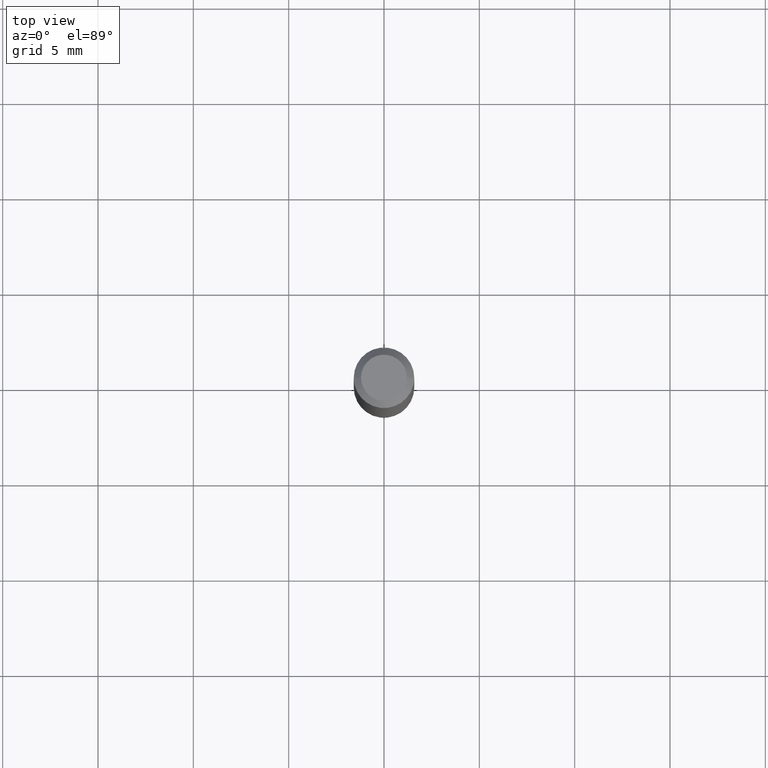
[diagram: clean part render]
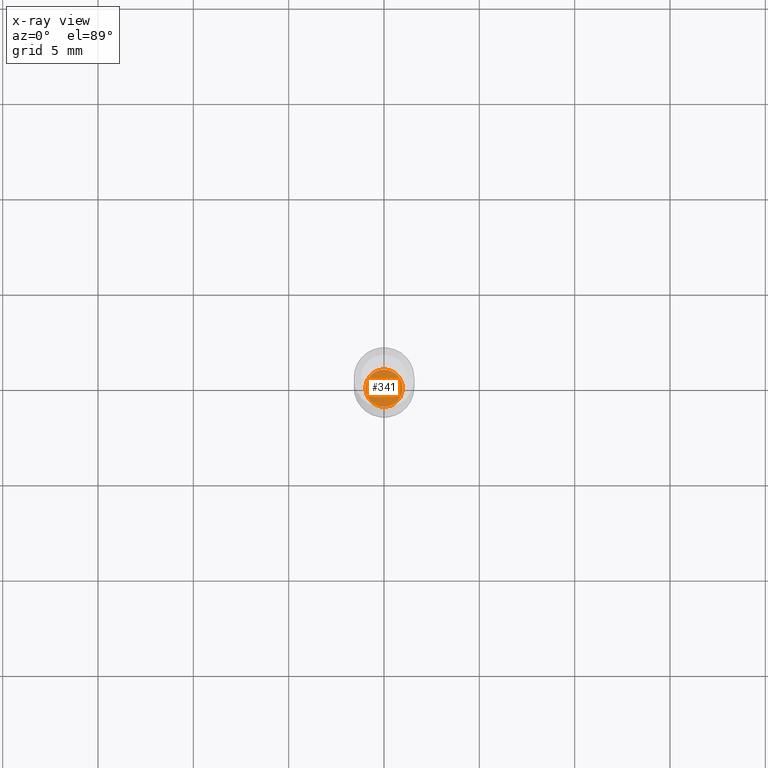
[diagram: x-ray — body ghosted, one internal face saturated and labeled with its STEP entity id]
A machine part, top view, then the same camera in x-ray: the body is ghosted and one INTERNAL B-rep face — a face not visible from any outside direction — is saturated and labeled: STEP entity #341.
In plain terms, the highlighted planar face has unit normal (-0, 0, 1).
Its self-contained STEP definition (entity closure, byte-faithful):
#4 = EDGE_CURVE ( 'NONE', #169, #399, #342, .T. ) ;
#7 = AXIS2_PLACEMENT_3D ( 'NONE', #355, #358, #20 ) ;
#20 = DIRECTION ( 'NONE',  ( 1.000000000000000000, -6.982962677686271444E-15, 0.000000000000000000 ) ) ;
#37 = AXIS2_PLACEMENT_3D ( 'NONE', #79, #272, #382 ) ;
#44 = PLANE ( 'NONE',  #37 ) ;
#53 = EDGE_LOOP ( 'NONE', ( #334, #111 ) ) ;
#79 = CARTESIAN_POINT ( 'NONE',  ( 3.095963508630383106E-29, -4.420215374975422163E-15, -1.266000000000000014 ) ) ;
#86 = AXIS2_PLACEMENT_3D ( 'NONE', #454, #415, #134 ) ;
#111 = ORIENTED_EDGE ( 'NONE', *, *, #408, .F. ) ;
#125 = CARTESIAN_POINT ( 'NONE',  ( -0.03849999999999999256, -4.144007194533673331E-15, -1.266000000000000014 ) ) ;
#134 = DIRECTION ( 'NONE',  ( 1.000000000000000000, -6.982962677686271444E-15, 0.000000000000000000 ) ) ;
#159 = CIRCLE ( 'NONE', #7, 0.03849999999999999256 ) ;
#169 = VERTEX_POINT ( 'NONE', #250 ) ;
#250 = CARTESIAN_POINT ( 'NONE',  ( 0.03849999999999999256, -4.689059438066343968E-15, -1.266000000000000014 ) ) ;
#272 = DIRECTION ( 'NONE',  ( -2.438088387897960049E-29, 3.491481338843145188E-15, 1.000000000000000000 ) ) ;
#334 = ORIENTED_EDGE ( 'NONE', *, *, #4, .F. ) ;
#341 = ADVANCED_FACE ( 'NONE', ( #374 ), #44, .F. ) ;
#342 = CIRCLE ( 'NONE', #86, 0.03849999999999999256 ) ;
#355 = CARTESIAN_POINT ( 'NONE',  ( 3.095963508630383106E-29, -4.420215374975422163E-15, -1.266000000000000014 ) ) ;
#358 = DIRECTION ( 'NONE',  ( -2.445468806185136597E-29, 3.491481338843145583E-15, 1.000000000000000000 ) ) ;
#374 = FACE_OUTER_BOUND ( 'NONE', #53, .T. ) ;
#382 = DIRECTION ( 'NONE',  ( 1.000000000000000000, -6.982962677686265922E-15, 4.876176775795935793E-29 ) ) ;
#399 = VERTEX_POINT ( 'NONE', #125 ) ;
#408 = EDGE_CURVE ( 'NONE', #399, #169, #159, .T. ) ;
#415 = DIRECTION ( 'NONE',  ( -2.445468806185136597E-29, 3.491481338843145583E-15, 1.000000000000000000 ) ) ;
#454 = CARTESIAN_POINT ( 'NONE',  ( 3.095963508630383106E-29, -4.420215374975422163E-15, -1.266000000000000014 ) ) ;